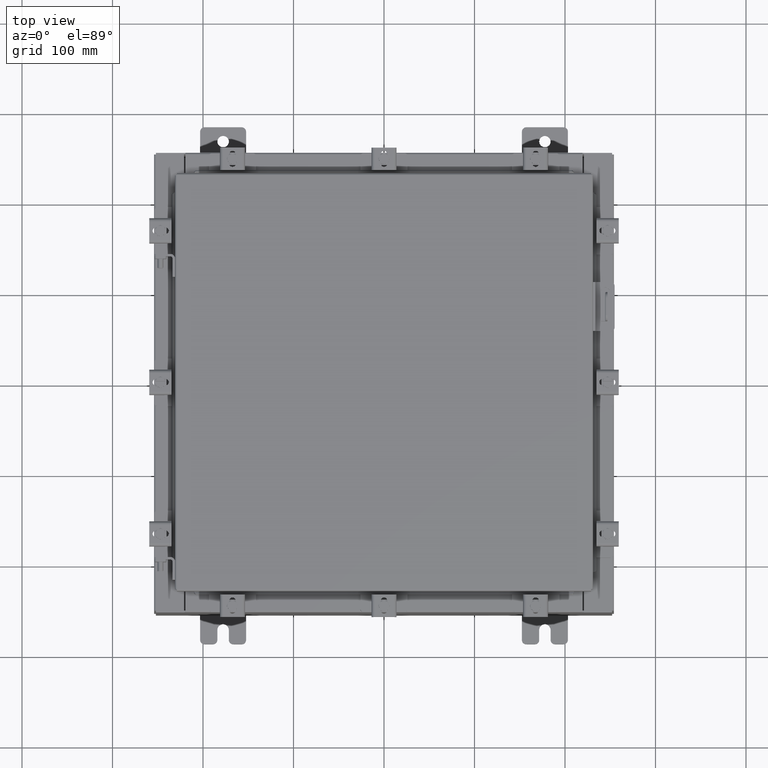
[diagram: clean part render]
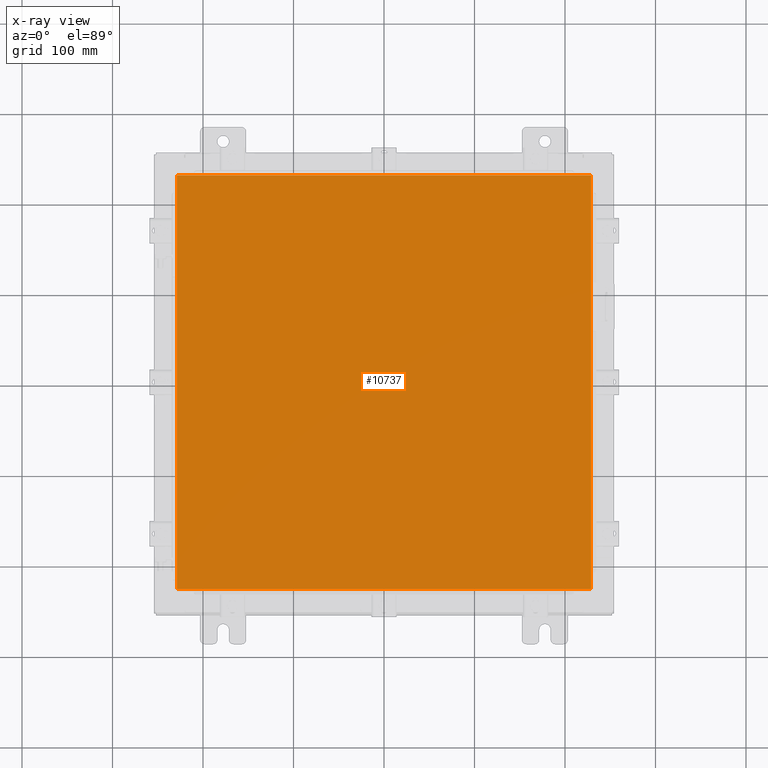
[diagram: x-ray — body ghosted, one internal face saturated and labeled with its STEP entity id]
A machine part, top view, then the same camera in x-ray: the body is ghosted and one INTERNAL B-rep face — a face not visible from any outside direction — is saturated and labeled: STEP entity #10737.
In plain terms, the highlighted planar face has unit normal (0, 0, -1).
Its self-contained STEP definition (entity closure, byte-faithful):
#289 = PLANE ( 'NONE',  #18994 ) ;
#310 = CARTESIAN_POINT ( 'NONE',  ( 9.006300000000001300, -9.006299999999999500, -0.07470000000000015500 ) ) ;
#397 = VERTEX_POINT ( 'NONE', #12136 ) ;
#581 = DIRECTION ( 'NONE',  ( 1.000000000000000000, -0.0000000000000000000, -0.0000000000000000000 ) ) ;
#810 = CARTESIAN_POINT ( 'NONE',  ( 9.006299999999999500, 9.006299999999999500, -0.07470000000000015500 ) ) ;
#1831 = LINE ( 'NONE', #8536, #19844 ) ;
#2037 = DIRECTION ( 'NONE',  ( 0.0000000000000000000, 0.0000000000000000000, -1.000000000000000000 ) ) ;
#3802 = VECTOR ( 'NONE', #11713, 39.37007874015748100 ) ;
#5128 = VERTEX_POINT ( 'NONE', #310 ) ;
#8059 = ORIENTED_EDGE ( 'NONE', *, *, #18776, .F. ) ;
#8342 = FACE_OUTER_BOUND ( 'NONE', #16551, .T. ) ;
#8424 = ORIENTED_EDGE ( 'NONE', *, *, #19660, .F. ) ;
#8434 = LINE ( 'NONE', #15118, #3802 ) ;
#8536 = CARTESIAN_POINT ( 'NONE',  ( -9.006299999999997800, 9.006299999999999500, -0.07470000000000125200 ) ) ;
#8982 = CARTESIAN_POINT ( 'NONE',  ( 0.0000000000000000000, 0.0000000000000000000, -0.07470000000000015500 ) ) ;
#10737 = ADVANCED_FACE ( 'NONE', ( #8342 ), #289, .T. ) ;
#10822 = VECTOR ( 'NONE', #581, 39.37007874015748100 ) ;
#10847 = VECTOR ( 'NONE', #14721, 39.37007874015748100 ) ;
#10866 = CARTESIAN_POINT ( 'NONE',  ( -9.006299999999997800, 9.006299999999997800, -0.07470000000000015500 ) ) ;
#11573 = ORIENTED_EDGE ( 'NONE', *, *, #19907, .F. ) ;
#11713 = DIRECTION ( 'NONE',  ( 0.0000000000000000000, 1.000000000000000000, 0.0000000000000000000 ) ) ;
#11954 = LINE ( 'NONE', #18263, #10847 ) ;
#12136 = CARTESIAN_POINT ( 'NONE',  ( -9.006299999999997800, -9.006299999999999500, -0.07470000000000015500 ) ) ;
#14237 = DIRECTION ( 'NONE',  ( -1.000000000000000000, 0.0000000000000000000, -0.0000000000000000000 ) ) ;
#14721 = DIRECTION ( 'NONE',  ( -1.000000000000000000, -0.0000000000000000000, -0.0000000000000000000 ) ) ;
#15118 = CARTESIAN_POINT ( 'NONE',  ( 9.006300000000001300, -9.006299999999999500, -0.07470000000000015500 ) ) ;
#15943 = VERTEX_POINT ( 'NONE', #810 ) ;
#16551 = EDGE_LOOP ( 'NONE', ( #8059, #11573, #8424, #17316 ) ) ;
#17316 = ORIENTED_EDGE ( 'NONE', *, *, #19366, .F. ) ;
#18263 = CARTESIAN_POINT ( 'NONE',  ( 9.006300000000001300, 9.006299999999999500, -0.07470000000000015500 ) ) ;
#18776 = EDGE_CURVE ( 'NONE', #5128, #15943, #8434, .T. ) ;
#18994 = AXIS2_PLACEMENT_3D ( 'NONE', #8982, #2037, #14237 ) ;
#19366 = EDGE_CURVE ( 'NONE', #15943, #20391, #11954, .T. ) ;
#19660 = EDGE_CURVE ( 'NONE', #20391, #397, #1831, .T. ) ;
#19844 = VECTOR ( 'NONE', #20720, 39.37007874015748100 ) ;
#19907 = EDGE_CURVE ( 'NONE', #397, #5128, #20095, .T. ) ;
#20095 = LINE ( 'NONE', #21498, #10822 ) ;
#20391 = VERTEX_POINT ( 'NONE', #10866 ) ;
#20720 = DIRECTION ( 'NONE',  ( 0.0000000000000000000, -1.000000000000000000, 0.0000000000000000000 ) ) ;
#21498 = CARTESIAN_POINT ( 'NONE',  ( -9.006299999999997800, -9.006299999999999500, -0.07470000000000015500 ) ) ;